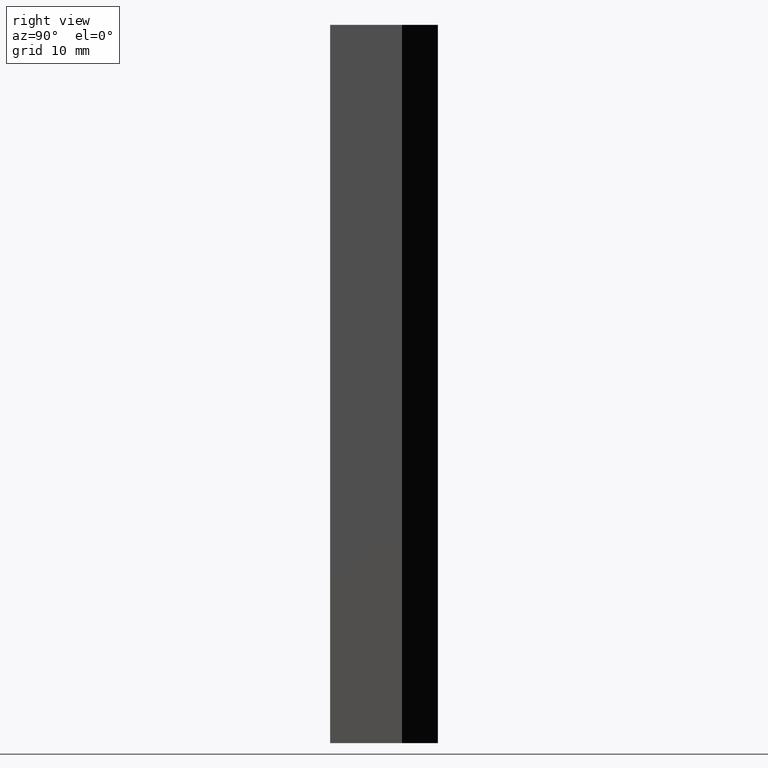
[diagram: clean part render]
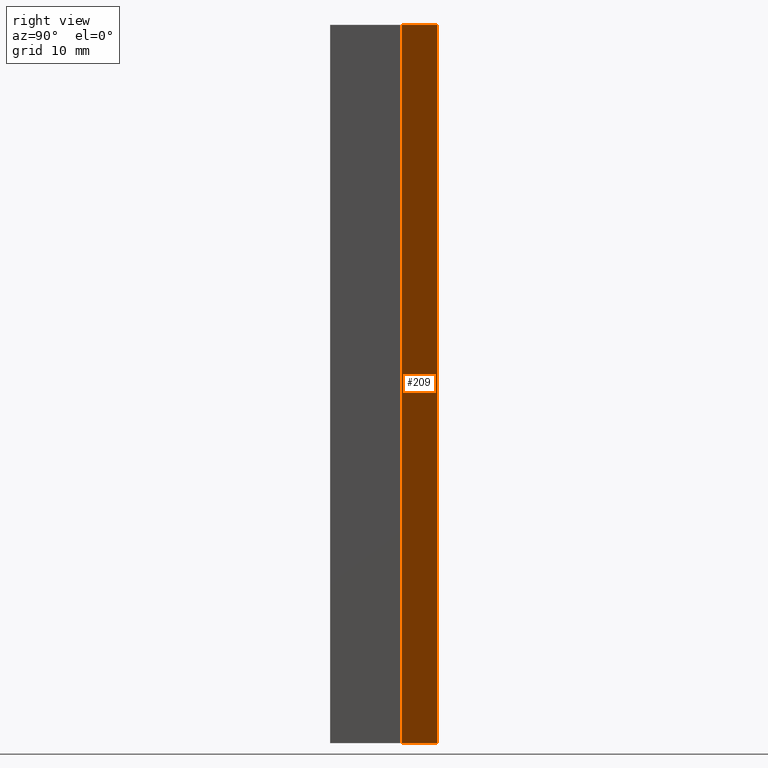
[diagram: same view with one face highlighted and labeled with its STEP entity id]
A machine part, right view. The second image highlights one B-rep face of the part: STEP entity #209.
In plain terms, the highlighted planar face has unit normal (0.4856, 0.8742, 0).
Its self-contained STEP definition (entity closure, byte-faithful):
#23=FACE_OUTER_BOUND('',#34,.T.);
#34=EDGE_LOOP('',(#170,#171,#172,#173));
#46=LINE('',#314,#73);
#59=LINE('',#340,#86);
#60=LINE('',#343,#87);
#61=LINE('',#344,#88);
#73=VECTOR('',#256,10.);
#86=VECTOR('',#281,10.);
#87=VECTOR('',#284,10.);
#88=VECTOR('',#285,10.);
#93=VERTEX_POINT('',#298);
#100=VERTEX_POINT('',#312);
#107=VERTEX_POINT('',#338);
#108=VERTEX_POINT('',#342);
#118=EDGE_CURVE('',#93,#100,#46,.T.);
#131=EDGE_CURVE('',#107,#100,#59,.T.);
#132=EDGE_CURVE('',#107,#108,#60,.T.);
#133=EDGE_CURVE('',#108,#93,#61,.T.);
#170=ORIENTED_EDGE('',*,*,#132,.T.);
#171=ORIENTED_EDGE('',*,*,#133,.T.);
#172=ORIENTED_EDGE('',*,*,#118,.T.);
#173=ORIENTED_EDGE('',*,*,#131,.F.);
#198=PLANE('',#240);
#209=ADVANCED_FACE('',(#23),#198,.T.);
#240=AXIS2_PLACEMENT_3D('',#341,#282,#283);
#256=DIRECTION('',(-0.874157276121538,0.485642931178632,0.));
#281=DIRECTION('',(0.,0.,-1.));
#282=DIRECTION('center_axis',(0.485642931178632,0.874157276121538,0.));
#283=DIRECTION('ref_axis',(0.,0.,1.));
#284=DIRECTION('',(0.874157276121538,-0.485642931178632,0.));
#285=DIRECTION('',(0.,0.,-1.));
#298=CARTESIAN_POINT('',(6.,10.,-50.));
#312=CARTESIAN_POINT('',(-3.,15.,-50.));
#314=CARTESIAN_POINT('',(-3.,15.,-50.));
#338=CARTESIAN_POINT('',(-3.,15.,50.));
#340=CARTESIAN_POINT('',(-3.,15.,0.));
#341=CARTESIAN_POINT('Origin',(-3.,15.,0.));
#342=CARTESIAN_POINT('',(6.,10.,50.));
#343=CARTESIAN_POINT('',(-3.,15.,50.));
#344=CARTESIAN_POINT('',(6.,10.,0.));